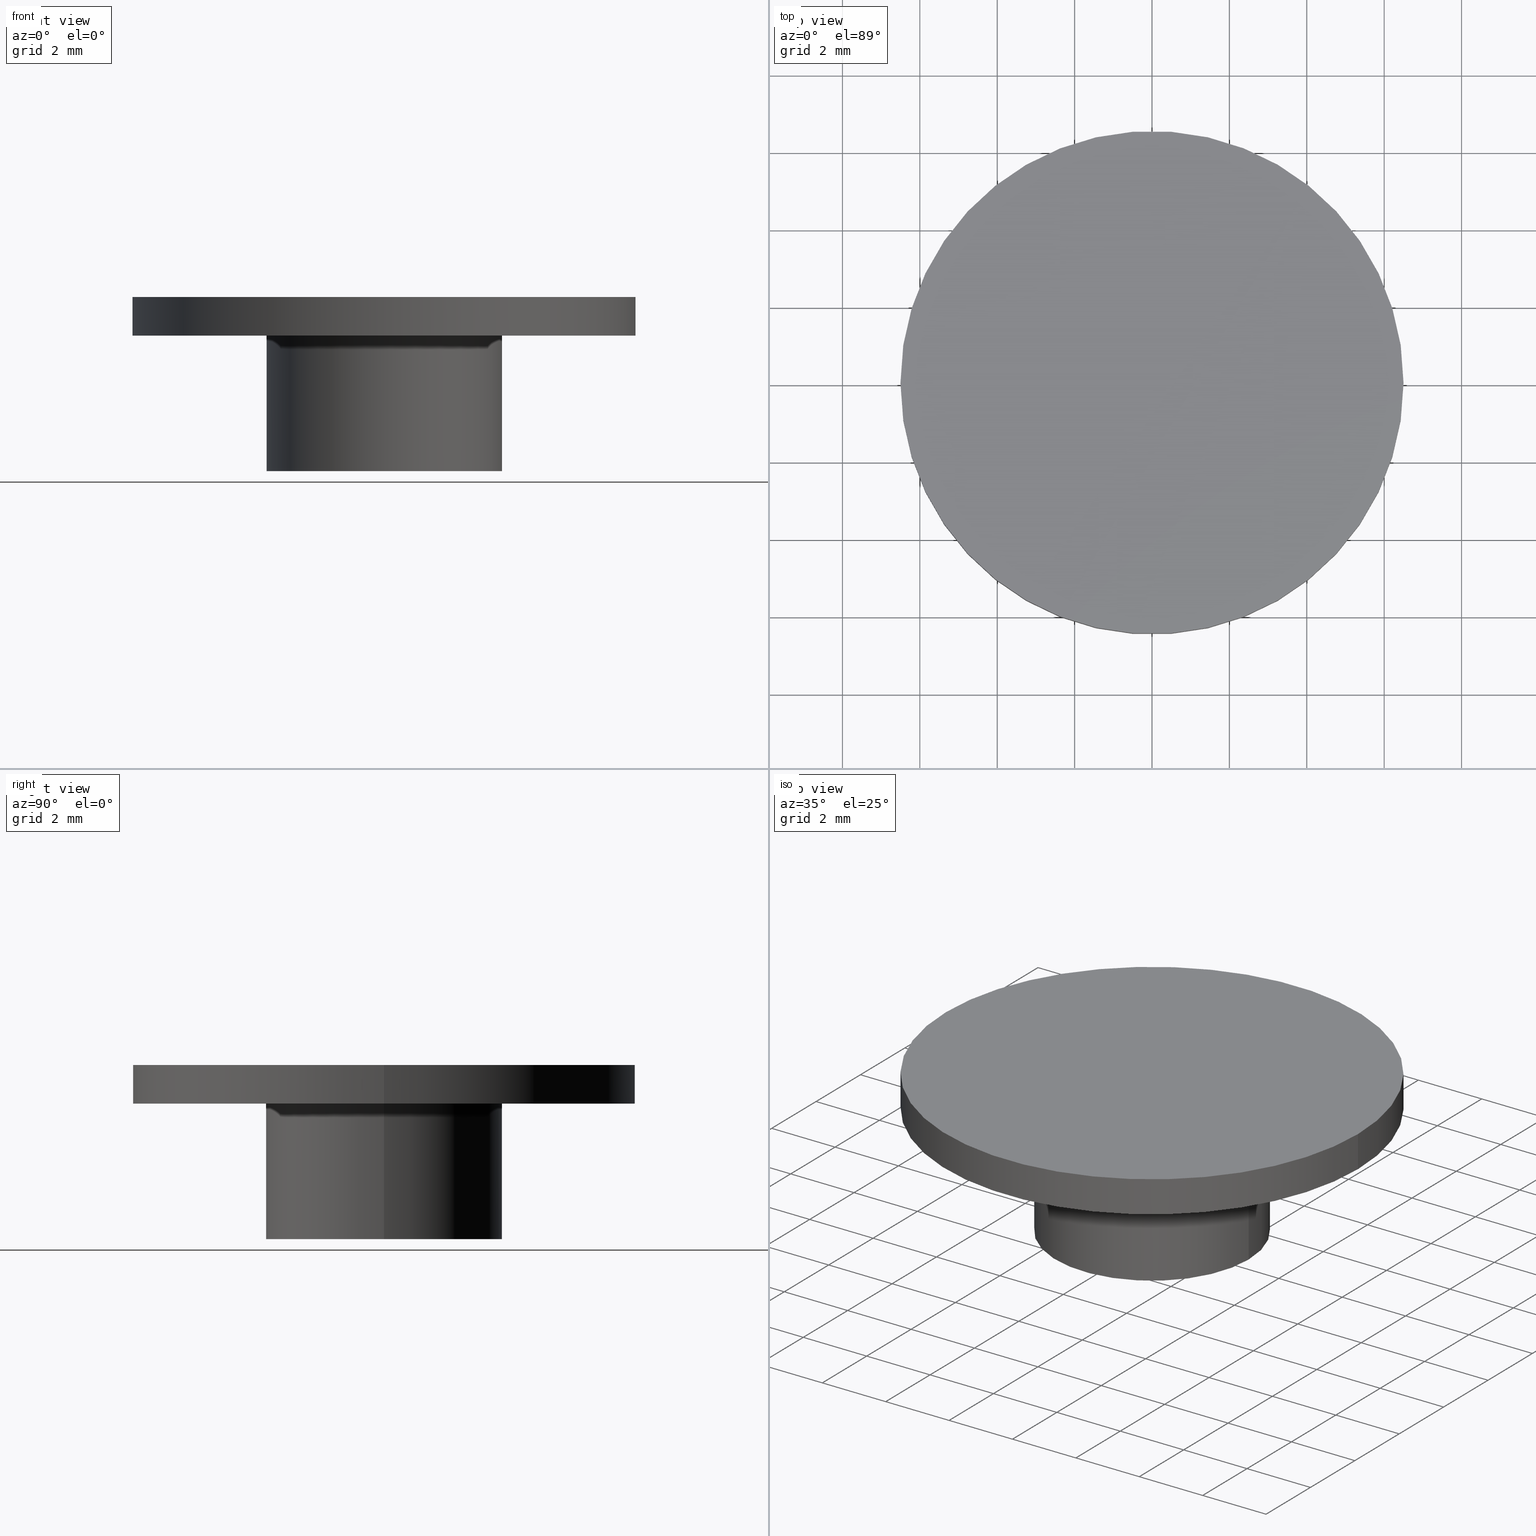
[diagram: canonical four-view strip — front | top / right | iso, engineering-drawing reading convention]
A machine part, canonical four-view strip (front | top / right | iso — engineering-drawing reading convention). The complete STEP part file that produces these views, byte-faithful:
ISO-10303-21;
HEADER;
FILE_DESCRIPTION( ( 'STEP AP203' ), '1' );
FILE_NAME( 'C:/Documents and Settings/JP/�f�X�N�g�b�v/�_�E�����[�h�pCAD�f�[�^/�L���b�v�{���g���L���b�v/M8/M8.step', '2022-07-27T07:42:17', ( ' ' ), ( ' ' ), 'XStep 1.0', ' ', ' ' );
FILE_SCHEMA( ( 'CONFIG_CONTROL_DESIGN' ) );
ENDSEC;
DATA;
#1 = DESIGN_CONTEXT( '', #27, 'design' );
#2 = APPLICATION_PROTOCOL_DEFINITION( 'INTERNATIONAL STANDARD', 'config_control_design', 1994, #27 );
#3 = PRODUCT_CATEGORY_RELATIONSHIP( 'NONE', 'NONE', #28, #29 );
#4 = DATE_AND_TIME( #30, #31 );
#5 = DATE_TIME_ROLE( 'creation_date' );
#6 = DATE_TIME_ROLE( 'classification_date' );
#7 = PERSON_AND_ORGANIZATION_ROLE( 'creator' );
#8 = PERSON_AND_ORGANIZATION_ROLE( 'design_supplier' );
#9 = PERSON_AND_ORGANIZATION_ROLE( 'classification_officer' );
#10 = PERSON_AND_ORGANIZATION_ROLE( 'design_owner' );
#11 = APPROVAL_PERSON_ORGANIZATION( #32, #33, #34 );
#12 = APPROVAL_DATE_TIME( #4, #33 );
#13 = CC_DESIGN_APPROVAL( #33, ( #35, #36, #37 ) );
#14 = CC_DESIGN_DATE_AND_TIME_ASSIGNMENT( #4, #5, ( #37 ) );
#15 = CC_DESIGN_DATE_AND_TIME_ASSIGNMENT( #4, #6, ( #35 ) );
#16 = CC_DESIGN_PERSON_AND_ORGANIZATION_ASSIGNMENT( #32, #10, ( #38 ) );
#17 = CC_DESIGN_PERSON_AND_ORGANIZATION_ASSIGNMENT( #32, #7, ( #37 ) );
#18 = CC_DESIGN_PERSON_AND_ORGANIZATION_ASSIGNMENT( #32, #7, ( #36 ) );
#19 = CC_DESIGN_PERSON_AND_ORGANIZATION_ASSIGNMENT( #32, #8, ( #36 ) );
#20 = CC_DESIGN_SECURITY_CLASSIFICATION( #35, ( #36 ) );
#21 = CC_DESIGN_PERSON_AND_ORGANIZATION_ASSIGNMENT( #32, #9, ( #35 ) );
#22 = SHAPE_DEFINITION_REPRESENTATION( #39, #40 );
#23 =  ( GEOMETRIC_REPRESENTATION_CONTEXT( 3 )GLOBAL_UNCERTAINTY_ASSIGNED_CONTEXT( ( #43 ) )GLOBAL_UNIT_ASSIGNED_CONTEXT( ( #45, #46, #47 ) )REPRESENTATION_CONTEXT( 'NONE', 'WORKSPACE' ) );
#27 = APPLICATION_CONTEXT( 'CONFIGURATION CONTROLLED 3D DESIGNS OF MECHANICAL PARTS AND ASSEMBLIES' );
#28 = PRODUCT_CATEGORY( 'part', 'NONE' );
#29 = PRODUCT_RELATED_PRODUCT_CATEGORY( 'detail', ' ', ( #38 ) );
#30 = CALENDAR_DATE( 2022, 27, 6 );
#31 = LOCAL_TIME( 16, 42, 17.0000000000000, #49 );
#32 = PERSON_AND_ORGANIZATION( #50, #51 );
#33 = APPROVAL( #52, 'SOLID MODEL' );
#34 = APPROVAL_ROLE( 'APPROVED' );
#35 = SECURITY_CLASSIFICATION( '', '', #53 );
#36 = PRODUCT_DEFINITION_FORMATION_WITH_SPECIFIED_SOURCE( ' ', 'NONE', #38, .NOT_KNOWN. );
#37 = PRODUCT_DEFINITION( 'NONE', 'NONE', #36, #1 );
#38 = PRODUCT( '1', '1', 'PART-1-DESC', ( #54 ) );
#39 = PRODUCT_DEFINITION_SHAPE( 'NONE', 'NONE', #37 );
#40 = ADVANCED_BREP_SHAPE_REPRESENTATION( '1', ( #55, #56 ), #23 );
#43 = UNCERTAINTY_MEASURE_WITH_UNIT( LENGTH_MEASURE( 0.00100000000000000 ), #45, '', '' );
#45 =  ( CONVERSION_BASED_UNIT( 'MILLIMETRE', #59 )LENGTH_UNIT(  )NAMED_UNIT( #62 ) );
#46 =  ( NAMED_UNIT( #64 )PLANE_ANGLE_UNIT(  )SI_UNIT( $, .RADIAN. ) );
#47 =  ( NAMED_UNIT( #64 )SOLID_ANGLE_UNIT(  )SI_UNIT( $, .STERADIAN. ) );
#49 = COORDINATED_UNIVERSAL_TIME_OFFSET( 9, 0, .AHEAD. );
#50 = PERSON( '', 'UNSPECIFIED', $, $, $, $ );
#51 = ORGANIZATION( 'UNSPECIFIED', 'UNSPECIFIED', 'UNSPECIFIED' );
#52 = APPROVAL_STATUS( 'approved' );
#53 = SECURITY_CLASSIFICATION_LEVEL( 'unclassified' );
#54 = MECHANICAL_CONTEXT( '', #27, 'mechanical' );
#55 = MANIFOLD_SOLID_BREP( '1', #70 );
#56 = AXIS2_PLACEMENT_3D( '', #71, #72, #73 );
#59 = LENGTH_MEASURE_WITH_UNIT( LENGTH_MEASURE( 1.00000000000000 ), #74 );
#62 = DIMENSIONAL_EXPONENTS( 1.00000000000000, 0.000000000000000, 0.000000000000000, 0.000000000000000, 0.000000000000000, 0.000000000000000, 0.000000000000000 );
#64 = DIMENSIONAL_EXPONENTS( 0.000000000000000, 0.000000000000000, 0.000000000000000, 0.000000000000000, 0.000000000000000, 0.000000000000000, 0.000000000000000 );
#70 = CLOSED_SHELL( '', ( #75, #76, #77, #78, #79, #80, #81, #82 ) );
#71 = CARTESIAN_POINT( '', ( 0.000000000000000, 0.000000000000000, 0.000000000000000 ) );
#72 = DIRECTION( '', ( 0.000000000000000, 0.000000000000000, 1.00000000000000 ) );
#73 = DIRECTION( '', ( 1.00000000000000, 0.000000000000000, 0.000000000000000 ) );
#74 =  ( NAMED_UNIT( #62 )LENGTH_UNIT(  )SI_UNIT( .MILLI., .METRE. ) );
#75 = ADVANCED_FACE( '', ( #84, #85 ), #86, .T. );
#76 = ADVANCED_FACE( '', ( #87, #88 ), #89, .F. );
#77 = ADVANCED_FACE( '', ( #90, #91 ), #92, .T. );
#78 = ADVANCED_FACE( '', ( #93, #94 ), #95, .F. );
#79 = ADVANCED_FACE( '', ( #96, #97 ), #98, .F. );
#80 = ADVANCED_FACE( '', ( #99, #100 ), #101, .F. );
#81 = ADVANCED_FACE( '', ( #102 ), #103, .F. );
#82 = ADVANCED_FACE( '', ( #104 ), #105, .F. );
#84 = FACE_OUTER_BOUND( '', #106, .T. );
#85 = FACE_OUTER_BOUND( '', #107, .T. );
#86 = CYLINDRICAL_SURFACE( '', #108, 6.49999999999999 );
#87 = FACE_OUTER_BOUND( '', #109, .T. );
#88 = FACE_BOUND( '', #110, .T. );
#89 = PLANE( '', #111 );
#90 = FACE_OUTER_BOUND( '', #112, .T. );
#91 = FACE_OUTER_BOUND( '', #113, .T. );
#92 = CYLINDRICAL_SURFACE( '', #114, 3.05000000000000 );
#93 = FACE_OUTER_BOUND( '', #115, .T. );
#94 = FACE_BOUND( '', #116, .T. );
#95 = PLANE( '', #117 );
#96 = FACE_OUTER_BOUND( '', #118, .T. );
#97 = FACE_BOUND( '', #119, .T. );
#98 = CONICAL_SURFACE( '', #120, 1.91264264936674, 0.0523598775598345 );
#99 = FACE_OUTER_BOUND( '', #121, .T. );
#100 = FACE_OUTER_BOUND( '', #122, .T. );
#101 = TOROIDAL_SURFACE( '', #123, 1.51319083546491, 0.400000000000000 );
#102 = FACE_OUTER_BOUND( '', #124, .T. );
#103 = PLANE( '', #125 );
#104 = FACE_OUTER_BOUND( '', #126, .T. );
#105 = PLANE( '', #127 );
#106 = EDGE_LOOP( '', ( #128 ) );
#107 = EDGE_LOOP( '', ( #129 ) );
#108 = AXIS2_PLACEMENT_3D( '', #130, #131, #132 );
#109 = EDGE_LOOP( '', ( #133 ) );
#110 = EDGE_LOOP( '', ( #134 ) );
#111 = AXIS2_PLACEMENT_3D( '', #135, #136, #137 );
#112 = EDGE_LOOP( '', ( #138 ) );
#113 = EDGE_LOOP( '', ( #139 ) );
#114 = AXIS2_PLACEMENT_3D( '', #140, #141, #142 );
#115 = EDGE_LOOP( '', ( #143 ) );
#116 = EDGE_LOOP( '', ( #144 ) );
#117 = AXIS2_PLACEMENT_3D( '', #145, #146, #147 );
#118 = EDGE_LOOP( '', ( #148 ) );
#119 = EDGE_LOOP( '', ( #149 ) );
#120 = AXIS2_PLACEMENT_3D( '', #150, #151, #152 );
#121 = EDGE_LOOP( '', ( #153 ) );
#122 = EDGE_LOOP( '', ( #154 ) );
#123 = AXIS2_PLACEMENT_3D( '', #155, #156, #157 );
#124 = EDGE_LOOP( '', ( #158 ) );
#125 = AXIS2_PLACEMENT_3D( '', #159, #160, #161 );
#126 = EDGE_LOOP( '', ( #162 ) );
#127 = AXIS2_PLACEMENT_3D( '', #163, #164, #165 );
#128 = ORIENTED_EDGE( '', *, *, #166, .F. );
#129 = ORIENTED_EDGE( '', *, *, #167, .T. );
#130 = CARTESIAN_POINT( '', ( -9.39885376558675E-015, 0.000000000000000, 153.500000000000 ) );
#131 = DIRECTION( '', ( 6.12303176911189E-017, 0.000000000000000, -1.00000000000000 ) );
#132 = DIRECTION( '', ( 1.00000000000000, 0.000000000000000, 6.12303176911189E-017 ) );
#133 = ORIENTED_EDGE( '', *, *, #167, .F. );
#134 = ORIENTED_EDGE( '', *, *, #168, .T. );
#135 = CARTESIAN_POINT( '', ( -2.14306111918916E-016, 3.05000000000000, 3.50000000000001 ) );
#136 = DIRECTION( '', ( -6.12303176911189E-017, 0.000000000000000, 1.00000000000000 ) );
#137 = DIRECTION( '', ( 1.00000000000000, 0.000000000000000, 6.12303176911189E-017 ) );
#138 = ORIENTED_EDGE( '', *, *, #168, .F. );
#139 = ORIENTED_EDGE( '', *, *, #169, .T. );
#140 = CARTESIAN_POINT( '', ( -9.39885376558675E-015, 0.000000000000000, 153.500000000000 ) );
#141 = DIRECTION( '', ( 6.12303176911189E-017, 0.000000000000000, -1.00000000000000 ) );
#142 = DIRECTION( '', ( 1.00000000000000, 0.000000000000000, 6.12303176911189E-017 ) );
#143 = ORIENTED_EDGE( '', *, *, #169, .F. );
#144 = ORIENTED_EDGE( '', *, *, #170, .T. );
#145 = CARTESIAN_POINT( '', ( -7.96632521552264E-032, 2.05000000000000, 1.30104260698261E-015 ) );
#146 = DIRECTION( '', ( -6.12303176911189E-017, 0.000000000000000, 1.00000000000000 ) );
#147 = DIRECTION( '', ( 1.00000000000000, 0.000000000000000, 6.12303176911189E-017 ) );
#148 = ORIENTED_EDGE( '', *, *, #170, .F. );
#149 = ORIENTED_EDGE( '', *, *, #171, .T. );
#150 = CARTESIAN_POINT( '', ( -1.60480644887879E-016, 0.000000000000000, 2.62093438249719 ) );
#151 = DIRECTION( '', ( 6.12303176911189E-017, 0.000000000000000, -1.00000000000000 ) );
#152 = DIRECTION( '', ( -1.00000000000000, 0.000000000000000, -6.12303176911189E-017 ) );
#153 = ORIENTED_EDGE( '', *, *, #171, .F. );
#154 = ORIENTED_EDGE( '', *, *, #172, .T. );
#155 = CARTESIAN_POINT( '', ( -1.59198825996908E-016, 0.000000000000000, 2.59999999999999 ) );
#156 = DIRECTION( '', ( -6.12303176911189E-017, 0.000000000000000, 1.00000000000000 ) );
#157 = DIRECTION( '', ( 1.00000000000000, 0.000000000000000, 6.12303176911189E-017 ) );
#158 = ORIENTED_EDGE( '', *, *, #172, .F. );
#159 = CARTESIAN_POINT( '', ( -1.83690953073356E-016, 0.000000000000000, 2.99999999999999 ) );
#160 = DIRECTION( '', ( -6.12303176911189E-017, 0.000000000000000, 1.00000000000000 ) );
#161 = DIRECTION( '', ( 1.00000000000000, 0.000000000000000, 6.12303176911189E-017 ) );
#162 = ORIENTED_EDGE( '', *, *, #166, .T. );
#163 = CARTESIAN_POINT( '', ( -2.75536429610035E-016, 6.49999999999999, 4.50000000000000 ) );
#164 = DIRECTION( '', ( 6.12303176911189E-017, 0.000000000000000, -1.00000000000000 ) );
#165 = DIRECTION( '', ( -1.00000000000000, 0.000000000000000, -6.12303176911189E-017 ) );
#166 = EDGE_CURVE( '', #173, #173, #174, .T. );
#167 = EDGE_CURVE( '', #175, #175, #176, .T. );
#168 = EDGE_CURVE( '', #177, #177, #178, .T. );
#169 = EDGE_CURVE( '', #179, #179, #180, .T. );
#170 = EDGE_CURVE( '', #181, #181, #182, .T. );
#171 = EDGE_CURVE( '', #183, #183, #184, .T. );
#172 = EDGE_CURVE( '', #185, #185, #186, .T. );
#173 = VERTEX_POINT( '', #187 );
#174 = CIRCLE( '', #188, 6.49999999999999 );
#175 = VERTEX_POINT( '', #189 );
#176 = CIRCLE( '', #190, 6.50000000000000 );
#177 = VERTEX_POINT( '', #191 );
#178 = CIRCLE( '', #192, 3.05000000000000 );
#179 = VERTEX_POINT( '', #193 );
#180 = CIRCLE( '', #194, 3.05000000000000 );
#181 = VERTEX_POINT( '', #195 );
#182 = CIRCLE( '', #196, 2.05000000000000 );
#183 = VERTEX_POINT( '', #197 );
#184 = CIRCLE( '', #198, 1.91264264936674 );
#185 = VERTEX_POINT( '', #199 );
#186 = CIRCLE( '', #200, 1.51319083546491 );
#187 = CARTESIAN_POINT( '', ( 6.49999999999999, 0.000000000000000, 4.50000000000000 ) );
#188 = AXIS2_PLACEMENT_3D( '', #201, #202, #203 );
#189 = CARTESIAN_POINT( '', ( 6.50000000000000, 0.000000000000000, 3.50000000000000 ) );
#190 = AXIS2_PLACEMENT_3D( '', #204, #205, #206 );
#191 = CARTESIAN_POINT( '', ( 3.05000000000000, 0.000000000000000, 3.50000000000000 ) );
#192 = AXIS2_PLACEMENT_3D( '', #207, #208, #209 );
#193 = CARTESIAN_POINT( '', ( 3.05000000000000, 0.000000000000000, -2.84901361400150E-015 ) );
#194 = AXIS2_PLACEMENT_3D( '', #210, #211, #212 );
#195 = CARTESIAN_POINT( '', ( 2.05000000000000, 0.000000000000000, -2.91024393169262E-015 ) );
#196 = AXIS2_PLACEMENT_3D( '', #213, #214, #215 );
#197 = CARTESIAN_POINT( '', ( 1.91264264936674, 0.000000000000000, 2.62093438249719 ) );
#198 = AXIS2_PLACEMENT_3D( '', #216, #217, #218 );
#199 = CARTESIAN_POINT( '', ( 1.51319083546491, 0.000000000000000, 3.00000000000000 ) );
#200 = AXIS2_PLACEMENT_3D( '', #219, #220, #221 );
#201 = CARTESIAN_POINT( '', ( -2.75536429610035E-016, 0.000000000000000, 4.50000000000000 ) );
#202 = DIRECTION( '', ( -6.12303176911189E-017, 0.000000000000000, 1.00000000000000 ) );
#203 = DIRECTION( '', ( 1.00000000000000, 0.000000000000000, 6.12303176911189E-017 ) );
#204 = CARTESIAN_POINT( '', ( -2.14306111918916E-016, 0.000000000000000, 3.50000000000000 ) );
#205 = DIRECTION( '', ( -6.12303176911189E-017, 0.000000000000000, 1.00000000000000 ) );
#206 = DIRECTION( '', ( 1.00000000000000, 0.000000000000000, 6.12303176911189E-017 ) );
#207 = CARTESIAN_POINT( '', ( -2.14306111918916E-016, 0.000000000000000, 3.50000000000000 ) );
#208 = DIRECTION( '', ( -6.12303176911189E-017, 0.000000000000000, 1.00000000000000 ) );
#209 = DIRECTION( '', ( 1.00000000000000, 0.000000000000000, 6.12303176911189E-017 ) );
#210 = CARTESIAN_POINT( '', ( 1.85880921695528E-031, 0.000000000000000, -3.03576608295941E-015 ) );
#211 = DIRECTION( '', ( -6.12303176911189E-017, 0.000000000000000, 1.00000000000000 ) );
#212 = DIRECTION( '', ( 1.00000000000000, 0.000000000000000, 6.12303176911189E-017 ) );
#213 = CARTESIAN_POINT( '', ( 1.85880921695528E-031, 0.000000000000000, -3.03576608295941E-015 ) );
#214 = DIRECTION( '', ( -6.12303176911189E-017, 0.000000000000000, 1.00000000000000 ) );
#215 = DIRECTION( '', ( 1.00000000000000, 0.000000000000000, 6.12303176911189E-017 ) );
#216 = CARTESIAN_POINT( '', ( -1.60480644887879E-016, 0.000000000000000, 2.62093438249719 ) );
#217 = DIRECTION( '', ( -6.12303176911189E-017, 0.000000000000000, 1.00000000000000 ) );
#218 = DIRECTION( '', ( 1.00000000000000, 0.000000000000000, 6.12303176911189E-017 ) );
#219 = CARTESIAN_POINT( '', ( -1.83690953073357E-016, 0.000000000000000, 3.00000000000000 ) );
#220 = DIRECTION( '', ( -6.12303176911189E-017, 0.000000000000000, 1.00000000000000 ) );
#221 = DIRECTION( '', ( 1.00000000000000, 0.000000000000000, 6.12303176911189E-017 ) );
ENDSEC;
END-ISO-10303-21;
